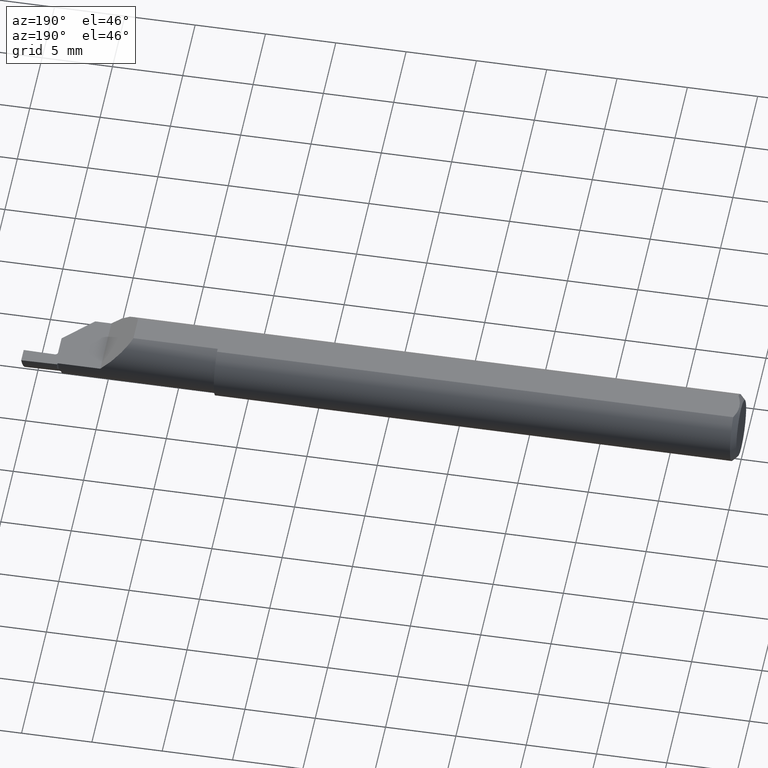
[diagram: clean part render]
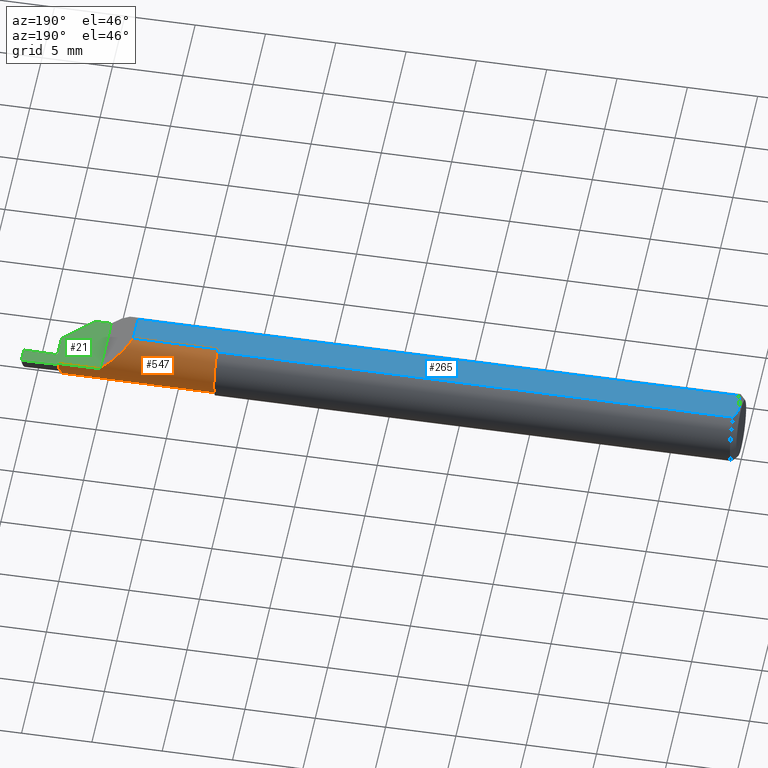
[diagram: same view with three faces highlighted in distinct colors, each labeled with its STEP entity id]
A machine part, auxiliary view with three faces highlighted in distinct colors.
Their STEP definitions:

[orange] entity #547 — the highlighted cylindrical surface (edge-blend (fillet) strip) has radius 2.3749 mm, axis along (-1, -0, -0).
#13 = DIRECTION ( 'NONE',  ( -1.000000000000000000, -0.000000000000000000, -0.000000000000000000 ) ) ;
#14 = CARTESIAN_POINT ( 'NONE',  ( 1.459999999999999964, 0.03097154424326390224, 0.08359999999999999376 ) ) ;
#16 = CARTESIAN_POINT ( 'NONE',  ( 1.892392784640333669, 0.07640332330515513248, -0.03349313484600640461 ) ) ;
#22 = B_SPLINE_CURVE_WITH_KNOTS ( 'NONE', 3,
 ( #767, #578, #67, #388, #271, #318, #209, #449, #16, #748, #757, #201, #461, #699 ),
 .UNSPECIFIED., .F., .F.,
 ( 4, 2, 2, 2, 2, 2, 4 ),
 ( 7.256861030427188251E-05, 9.698085888651912642E-05, 0.0001213931074687663839, 0.0001702176046332608988, 0.0002678665989622434776, 0.0004631645876202049490, 0.0008537605649361273497 ),
 .UNSPECIFIED. ) ;
#41 = AXIS2_PLACEMENT_3D ( 'NONE', #394, #13, #147 ) ;
#59 = ORIENTED_EDGE ( 'NONE', *, *, #68, .T. ) ;
#62 = CARTESIAN_POINT ( 'NONE',  ( 1.897000000000000020, 0.07811319095266830437, -0.02861409169956518131 ) ) ;
#66 = VERTEX_POINT ( 'NONE', #62 ) ;
#67 = CARTESIAN_POINT ( 'NONE',  ( 1.894627732444366996, 0.07811913687754187818, -0.02859649675619973727 ) ) ;
#68 = EDGE_CURVE ( 'NONE', #149, #170, #682, .T. ) ;
#78 = CARTESIAN_POINT ( 'NONE',  ( 1.897000000000000020, 0.08259923835978051632, 0.000000000000000000 ) ) ;
#94 = ORIENTED_EDGE ( 'NONE', *, *, #373, .T. ) ;
#98 = ORIENTED_EDGE ( 'NONE', *, *, #784, .T. ) ;
#101 = ORIENTED_EDGE ( 'NONE', *, *, #337, .F. ) ;
#118 = ORIENTED_EDGE ( 'NONE', *, *, #684, .T. ) ;
#123 = DIRECTION ( 'NONE',  ( -1.000000000000000000, -0.000000000000000000, -0.000000000000000000 ) ) ;
#125 = CARTESIAN_POINT ( 'NONE',  ( 1.459999999999999964, -0.01090076164021952856, 0.000000000000000000 ) ) ;
#135 = CARTESIAN_POINT ( 'NONE',  ( 1.897000000000000020, 0.07811319095266830437, -0.02861409169956518131 ) ) ;
#146 = CARTESIAN_POINT ( 'NONE',  ( 1.895835606825327035, 0.07814781751419529188, -0.02850620589952995720 ) ) ;
#147 = DIRECTION ( 'NONE',  ( 0.000000000000000000, 0.000000000000000000, 1.000000000000000000 ) ) ;
#149 = VERTEX_POINT ( 'NONE', #273 ) ;
#156 = CIRCLE ( 'NONE', #41, 0.09350000000000004141 ) ;
#169 =( BOUNDED_CURVE ( )  B_SPLINE_CURVE ( 3, ( #750, #262, #754, #650 ),
 .UNSPECIFIED., .F., .F. ) 
 B_SPLINE_CURVE_WITH_KNOTS ( ( 4, 4 ),
 ( 0.6209638303900812950, 1.521662293291193846 ),
 .UNSPECIFIED. ) 
 CURVE ( )  GEOMETRIC_REPRESENTATION_ITEM ( )  RATIONAL_B_SPLINE_CURVE ( ( 1.000000000000000000, 0.9335300958672718696, 0.9335300958672718696, 1.000000000000000000 ) ) 
 REPRESENTATION_ITEM ( '' )  );
#170 = VERTEX_POINT ( 'NONE', #78 ) ;
#174 = DIRECTION ( 'NONE',  ( 0.000000000000000000, 0.000000000000000000, 1.000000000000000000 ) ) ;
#198 = CARTESIAN_POINT ( 'NONE',  ( 1.459999999999999964, -0.006308577734120122439, -0.09338716103925936984 ) ) ;
#201 = CARTESIAN_POINT ( 'NONE',  ( 1.890598524915549916, 0.07068001362818430999, -0.04595452350073047504 ) ) ;
#208 = VERTEX_POINT ( 'NONE', #744 ) ;
#209 = CARTESIAN_POINT ( 'NONE',  ( 1.893292644685816706, 0.07743868350388317945, -0.03063904863663299491 ) ) ;
#218 = VERTEX_POINT ( 'NONE', #575 ) ;
#222 = VECTOR ( 'NONE', #336, 39.37007874015748143 ) ;
#224 = VERTEX_POINT ( 'NONE', #14 ) ;
#242 = CARTESIAN_POINT ( 'NONE',  ( 1.660946387129862867, 0.08259923835978048856, 0.000000000000000000 ) ) ;
#255 = CARTESIAN_POINT ( 'NONE',  ( 1.660946387129862867, 0.03097154424326391264, 0.08360000000000000764 ) ) ;
#261 = CARTESIAN_POINT ( 'NONE',  ( 1.895253422800819543, 0.07816509634661619743, -0.02845211663600469981 ) ) ;
#262 = CARTESIAN_POINT ( 'NONE',  ( 1.890775105635997821, 0.04823427239682376994, -0.07803867357391536252 ) ) ;
#264 = ORIENTED_EDGE ( 'NONE', *, *, #595, .F. ) ;
#267 = LINE ( 'NONE', #255, #735 ) ;
#270 = ORIENTED_EDGE ( 'NONE', *, *, #380, .T. ) ;
#271 = CARTESIAN_POINT ( 'NONE',  ( 1.893994891725665930, 0.07789552707581877400, -0.02928389011685635437 ) ) ;
#273 = CARTESIAN_POINT ( 'NONE',  ( 1.779599999999998516, 0.08259923835978043305, 0.000000000000000000 ) ) ;
#299 = CIRCLE ( 'NONE', #538, 0.09349999999999999978 ) ;
#309 = VECTOR ( 'NONE', #312, 39.37007874015748143 ) ;
#312 = DIRECTION ( 'NONE',  ( 1.000000000000000000, 0.000000000000000000, 0.000000000000000000 ) ) ;
#318 = CARTESIAN_POINT ( 'NONE',  ( 1.893524033098653581, 0.07763226771670377058, -0.03007426064524961959 ) ) ;
#322 = CARTESIAN_POINT ( 'NONE',  ( 1.896417799247865466, 0.07813051558452016598, -0.02856019748637314212 ) ) ;
#336 = DIRECTION ( 'NONE',  ( -1.000000000000000000, -0.000000000000000000, -0.000000000000000000 ) ) ;
#337 = EDGE_CURVE ( 'NONE', #149, #218, #387, .T. ) ;
#355 = EDGE_LOOP ( 'NONE', ( #118, #101, #59, #94, #692, #791, #270, #98, #264 ) ) ;
#373 = EDGE_CURVE ( 'NONE', #170, #66, #156, .T. ) ;
#380 = EDGE_CURVE ( 'NONE', #208, #712, #169, .T. ) ;
#382 = VERTEX_POINT ( 'NONE', #198 ) ;
#387 =( BOUNDED_CURVE ( )  B_SPLINE_CURVE ( 3, ( #573, #507, #646, #762 ),
 .UNSPECIFIED., .F., .F. ) 
 B_SPLINE_CURVE_WITH_KNOTS ( ( 4, 4 ),
 ( 4.712388980384689674, 5.818846015254569792 ),
 .UNSPECIFIED. ) 
 CURVE ( )  GEOMETRIC_REPRESENTATION_ITEM ( )  RATIONAL_B_SPLINE_CURVE ( ( 1.000000000000000000, 0.9005550513955334901, 0.9005550513955334901, 1.000000000000000000 ) ) 
 REPRESENTATION_ITEM ( '' )  );
#388 = CARTESIAN_POINT ( 'NONE',  ( 1.894170072029669694, 0.07797864803461972139, -0.02903019970120717524 ) ) ;
#394 = CARTESIAN_POINT ( 'NONE',  ( 1.897000000000000020, -0.01090076164021952856, 0.000000000000000000 ) ) ;
#398 = LINE ( 'NONE', #649, #222 ) ;
#422 = B_SPLINE_CURVE_WITH_KNOTS ( 'NONE', 3,
 ( #261, #146, #322, #135 ),
 .UNSPECIFIED., .F., .F.,
 ( 4, 4 ),
 ( 0.000000000000000000, 4.457292571049402440E-05 ),
 .UNSPECIFIED. ) ;
#436 = CARTESIAN_POINT ( 'NONE',  ( 1.660946387129862867, -0.01090076164021952856, 0.000000000000000000 ) ) ;
#444 = VERTEX_POINT ( 'NONE', #772 ) ;
#449 = CARTESIAN_POINT ( 'NONE',  ( 1.892683097730568420, 0.07683891314100430026, -0.03233318648368319753 ) ) ;
#461 = CARTESIAN_POINT ( 'NONE',  ( 1.890428976551350893, 0.06806399437556470700, -0.05031895006304105966 ) ) ;
#487 = CYLINDRICAL_SURFACE ( 'NONE', #503, 0.09350000000000002753 ) ;
#499 = CARTESIAN_POINT ( 'NONE',  ( 1.891727154626402729, -0.006308577734113422937, -0.09338716103925945311 ) ) ;
#503 = AXIS2_PLACEMENT_3D ( 'NONE', #436, #629, #174 ) ;
#507 = CARTESIAN_POINT ( 'NONE',  ( 1.743231059775836922, 0.08259923835978048856, 0.03636894022416206629 ) ) ;
#538 = AXIS2_PLACEMENT_3D ( 'NONE', #125, #123, #739 ) ;
#547 = ADVANCED_FACE ( 'NONE', ( #730 ), #487, .T. ) ;
#573 = CARTESIAN_POINT ( 'NONE',  ( 1.779599999999998516, 0.08259923835978043305, 0.000000000000000000 ) ) ;
#575 = CARTESIAN_POINT ( 'NONE',  ( 1.695999999999999286, 0.03097154424326392999, 0.08360000000000000764 ) ) ;
#578 = CARTESIAN_POINT ( 'NONE',  ( 1.894930893210933220, 0.07817466880910201033, -0.02842215121742965034 ) ) ;
#595 = EDGE_CURVE ( 'NONE', #224, #382, #299, .T. ) ;
#629 = DIRECTION ( 'NONE',  ( -1.000000000000000000, -0.000000000000000000, -0.000000000000000000 ) ) ;
#632 = DIRECTION ( 'NONE',  ( 1.000000000000000000, 0.000000000000000000, 0.000000000000000000 ) ) ;
#646 = CARTESIAN_POINT ( 'NONE',  ( 1.712287180638761397, 0.06348965550251473022, 0.06731281936123810483 ) ) ;
#649 = CARTESIAN_POINT ( 'NONE',  ( 1.678500000000000103, -0.006308577734120109429, -0.09338716103925938372 ) ) ;
#650 = CARTESIAN_POINT ( 'NONE',  ( 1.891727154626402729, -0.006308577734113422937, -0.09338716103925945311 ) ) ;
#682 = LINE ( 'NONE', #242, #309 ) ;
#684 = EDGE_CURVE ( 'NONE', #224, #218, #267, .T. ) ;
#692 = ORIENTED_EDGE ( 'NONE', *, *, #707, .F. ) ;
#699 = CARTESIAN_POINT ( 'NONE',  ( 1.890479936918255888, 0.06514447691086631964, -0.05440010747883181758 ) ) ;
#707 = EDGE_CURVE ( 'NONE', #444, #66, #422, .T. ) ;
#712 = VERTEX_POINT ( 'NONE', #499 ) ;
#719 = EDGE_CURVE ( 'NONE', #444, #208, #22, .T. ) ;
#730 = FACE_OUTER_BOUND ( 'NONE', #355, .T. ) ;
#735 = VECTOR ( 'NONE', #632, 39.37007874015748143 ) ;
#739 = DIRECTION ( 'NONE',  ( 0.000000000000000000, 0.000000000000000000, 1.000000000000000000 ) ) ;
#744 = CARTESIAN_POINT ( 'NONE',  ( 1.890479936918255888, 0.06514447691086631964, -0.05440010747883181758 ) ) ;
#748 = CARTESIAN_POINT ( 'NONE',  ( 1.891645442716298753, 0.07502228821001019621, -0.03695474021398025694 ) ) ;
#750 = CARTESIAN_POINT ( 'NONE',  ( 1.890479936918255888, 0.06514447691086631964, -0.05440010747883181758 ) ) ;
#754 = CARTESIAN_POINT ( 'NONE',  ( 1.891220446646308728, 0.02272070300350633593, -0.09195968648787943012 ) ) ;
#757 = CARTESIAN_POINT ( 'NONE',  ( 1.891328556254514126, 0.07400622478932961101, -0.03923393220600784187 ) ) ;
#762 = CARTESIAN_POINT ( 'NONE',  ( 1.695999999999999286, 0.03097154424326392999, 0.08360000000000000764 ) ) ;
#767 = CARTESIAN_POINT ( 'NONE',  ( 1.895253422800819543, 0.07816509634661619743, -0.02845211663600469981 ) ) ;
#772 = CARTESIAN_POINT ( 'NONE',  ( 1.895253422800819543, 0.07816509634661619743, -0.02845211663600469981 ) ) ;
#784 = EDGE_CURVE ( 'NONE', #712, #382, #398, .T. ) ;
#791 = ORIENTED_EDGE ( 'NONE', *, *, #719, .T. ) ;

[blue] entity #265 — the highlighted planar face has unit normal (0, 0, -1).
#3 = EDGE_CURVE ( 'NONE', #545, #340, #315, .T. ) ;
#14 = CARTESIAN_POINT ( 'NONE',  ( 1.459999999999999964, 0.03097154424326390224, 0.08359999999999999376 ) ) ;
#33 = FACE_OUTER_BOUND ( 'NONE', #630, .T. ) ;
#37 = B_SPLINE_CURVE_WITH_KNOTS ( 'NONE', 3,
 ( #458, #330, #520, #759, #702, #144 ),
 .UNSPECIFIED., .F., .F.,
 ( 4, 2, 4 ),
 ( 0.002614097267282435456, 0.003163218599391052176, 0.003712339931499668896 ),
 .UNSPECIFIED. ) ;
#70 = ORIENTED_EDGE ( 'NONE', *, *, #775, .F. ) ;
#80 = ORIENTED_EDGE ( 'NONE', *, *, #421, .F. ) ;
#88 = ORIENTED_EDGE ( 'NONE', *, *, #684, .F. ) ;
#93 = CARTESIAN_POINT ( 'NONE',  ( 0.000000000000000000, -0.1936000000000000221, 0.08360000000000000764 ) ) ;
#104 = AXIS2_PLACEMENT_3D ( 'NONE', #93, #350, #286 ) ;
#117 = VECTOR ( 'NONE', #210, 39.37007874015748143 ) ;
#144 = CARTESIAN_POINT ( 'NONE',  ( 0.01499999999999995781, -0.04209513035969836975, 0.08360000000000000764 ) ) ;
#152 = PLANE ( 'NONE',  #104 ) ;
#158 = VECTOR ( 'NONE', #565, 39.37007874015748143 ) ;
#159 = CARTESIAN_POINT ( 'NONE',  ( 1.695999999999999286, -0.04209513035969836975, 0.08360000000000000764 ) ) ;
#173 = EDGE_CURVE ( 'NONE', #340, #200, #37, .T. ) ;
#179 = CARTESIAN_POINT ( 'NONE',  ( 0.005981829149300420256, 0.01454044632356572483, 0.08359999999999997988 ) ) ;
#200 = VERTEX_POINT ( 'NONE', #751 ) ;
#205 = LINE ( 'NONE', #456, #521 ) ;
#210 = DIRECTION ( 'NONE',  ( -1.000000000000000000, -0.000000000000000000, -0.000000000000000000 ) ) ;
#218 = VERTEX_POINT ( 'NONE', #575 ) ;
#224 = VERTEX_POINT ( 'NONE', #14 ) ;
#246 = VECTOR ( 'NONE', #485, 39.37007874015748143 ) ;
#254 = VERTEX_POINT ( 'NONE', #159 ) ;
#255 = CARTESIAN_POINT ( 'NONE',  ( 1.660946387129862867, 0.03097154424326391264, 0.08360000000000000764 ) ) ;
#265 = ADVANCED_FACE ( 'NONE', ( #33 ), #152, .F. ) ;
#267 = LINE ( 'NONE', #255, #735 ) ;
#286 = DIRECTION ( 'NONE',  ( -1.000000000000000000, 0.000000000000000000, -0.000000000000000000 ) ) ;
#305 = LINE ( 'NONE', #800, #246 ) ;
#314 = LINE ( 'NONE', #375, #158 ) ;
#315 = B_SPLINE_CURVE_WITH_KNOTS ( 'NONE', 3,
 ( #431, #676, #369, #179, #482, #560 ),
 .UNSPECIFIED., .F., .F.,
 ( 4, 2, 4 ),
 ( 0.001518921481343233400, 0.002066509374312834428, 0.002614097267282435456 ),
 .UNSPECIFIED. ) ;
#317 = ORIENTED_EDGE ( 'NONE', *, *, #620, .T. ) ;
#330 = CARTESIAN_POINT ( 'NONE',  ( 0.004999999999999745967, -0.007328888879231070311, 0.08360000000000000764 ) ) ;
#340 = VERTEX_POINT ( 'NONE', #342 ) ;
#342 = CARTESIAN_POINT ( 'NONE',  ( 0.004999999999999758110, 1.025183015402604432E-17, 0.08360000000000000764 ) ) ;
#350 = DIRECTION ( 'NONE',  ( 0.000000000000000000, 0.000000000000000000, -1.000000000000000000 ) ) ;
#369 = CARTESIAN_POINT ( 'NONE',  ( 0.009492654797564083896, 0.02859466010166633598, 0.08360000000000000764 ) ) ;
#375 = CARTESIAN_POINT ( 'NONE',  ( 1.695999999999999286, 0.04209513035969836975, 0.08360000000000000764 ) ) ;
#421 = EDGE_CURVE ( 'NONE', #254, #200, #523, .T. ) ;
#431 = CARTESIAN_POINT ( 'NONE',  ( 0.01499999999999995955, 0.04209513035969836975, 0.08360000000000000764 ) ) ;
#439 = VERTEX_POINT ( 'NONE', #776 ) ;
#456 = CARTESIAN_POINT ( 'NONE',  ( 1.459999999999999964, -0.1936000000000000221, 0.08360000000000000764 ) ) ;
#458 = CARTESIAN_POINT ( 'NONE',  ( 0.004999999999999758110, 1.025183015402604432E-17, 0.08360000000000000764 ) ) ;
#482 = CARTESIAN_POINT ( 'NONE',  ( 0.004999999999999746834, 0.007308422719211847378, 0.08360000000000000764 ) ) ;
#485 = DIRECTION ( 'NONE',  ( 1.000000000000000000, 0.000000000000000000, 0.000000000000000000 ) ) ;
#514 = ORIENTED_EDGE ( 'NONE', *, *, #616, .F. ) ;
#520 = CARTESIAN_POINT ( 'NONE',  ( 0.005975039161239103364, -0.01453776427033151575, 0.08360000000000000764 ) ) ;
#521 = VECTOR ( 'NONE', #704, 39.37007874015748143 ) ;
#523 = LINE ( 'NONE', #768, #117 ) ;
#545 = VERTEX_POINT ( 'NONE', #690 ) ;
#560 = CARTESIAN_POINT ( 'NONE',  ( 0.004999999999999758110, 1.025183015402604432E-17, 0.08360000000000000764 ) ) ;
#565 = DIRECTION ( 'NONE',  ( -0.000000000000000000, 1.000000000000000000, 0.000000000000000000 ) ) ;
#575 = CARTESIAN_POINT ( 'NONE',  ( 1.695999999999999286, 0.03097154424326392999, 0.08360000000000000764 ) ) ;
#616 = EDGE_CURVE ( 'NONE', #545, #439, #305, .T. ) ;
#620 = EDGE_CURVE ( 'NONE', #254, #218, #314, .T. ) ;
#630 = EDGE_LOOP ( 'NONE', ( #70, #514, #782, #667, #80, #317, #88 ) ) ;
#632 = DIRECTION ( 'NONE',  ( 1.000000000000000000, 0.000000000000000000, 0.000000000000000000 ) ) ;
#667 = ORIENTED_EDGE ( 'NONE', *, *, #173, .T. ) ;
#676 = CARTESIAN_POINT ( 'NONE',  ( 0.01203648650249635951, 0.03550565407121128447, 0.08360000000000000764 ) ) ;
#684 = EDGE_CURVE ( 'NONE', #224, #218, #267, .T. ) ;
#690 = CARTESIAN_POINT ( 'NONE',  ( 0.01499999999999995955, 0.04209513035969836975, 0.08360000000000000764 ) ) ;
#702 = CARTESIAN_POINT ( 'NONE',  ( 0.01206089165507010647, -0.03555991978469318082, 0.08360000000000000764 ) ) ;
#704 = DIRECTION ( 'NONE',  ( 0.000000000000000000, -1.000000000000000000, 0.000000000000000000 ) ) ;
#735 = VECTOR ( 'NONE', #632, 39.37007874015748143 ) ;
#751 = CARTESIAN_POINT ( 'NONE',  ( 0.01499999999999995781, -0.04209513035969836975, 0.08360000000000000764 ) ) ;
#759 = CARTESIAN_POINT ( 'NONE',  ( 0.009539353699420573957, -0.02875682547511376752, 0.08359999999999997988 ) ) ;
#768 = CARTESIAN_POINT ( 'NONE',  ( 0.000000000000000000, -0.04209513035969836975, 0.08360000000000000764 ) ) ;
#775 = EDGE_CURVE ( 'NONE', #439, #224, #205, .T. ) ;
#776 = CARTESIAN_POINT ( 'NONE',  ( 1.459999999999999964, 0.04209513035969836975, 0.08360000000000000764 ) ) ;
#782 = ORIENTED_EDGE ( 'NONE', *, *, #3, .T. ) ;
#800 = CARTESIAN_POINT ( 'NONE',  ( 0.000000000000000000, 0.04209513035969836975, 0.08360000000000000764 ) ) ;

[green] entity #21 — the highlighted planar face has unit normal (0, 0, -1).
#2 = DIRECTION ( 'NONE',  ( -1.000000000000000000, 0.000000000000000000, 0.000000000000000000 ) ) ;
#8 = LINE ( 'NONE', #385, #618 ) ;
#10 = AXIS2_PLACEMENT_3D ( 'NONE', #557, #427, #738 ) ;
#21 = ADVANCED_FACE ( 'NONE', ( #171 ), #124, .F. ) ;
#24 = CARTESIAN_POINT ( 'NONE',  ( 1.899999999999999911, 0.08559923835978050510, 0.000000000000000000 ) ) ;
#26 = VECTOR ( 'NONE', #623, 39.37007874015748143 ) ;
#45 = LINE ( 'NONE', #295, #141 ) ;
#50 = EDGE_CURVE ( 'NONE', #567, #670, #669, .T. ) ;
#54 = ORIENTED_EDGE ( 'NONE', *, *, #107, .T. ) ;
#55 = EDGE_CURVE ( 'NONE', #448, #60, #300, .T. ) ;
#56 = CARTESIAN_POINT ( 'NONE',  ( 1.913000000000000034, 0.04211661038418336445, 0.000000000000000000 ) ) ;
#60 = VERTEX_POINT ( 'NONE', #617 ) ;
#63 = VECTOR ( 'NONE', #601, 39.37007874015748143 ) ;
#68 = EDGE_CURVE ( 'NONE', #149, #170, #682, .T. ) ;
#72 = CARTESIAN_POINT ( 'NONE',  ( 2.000000000000000000, 0.04859923835978044449, 0.000000000000000000 ) ) ;
#78 = CARTESIAN_POINT ( 'NONE',  ( 1.897000000000000020, 0.08259923835978051632, 0.000000000000000000 ) ) ;
#97 = LINE ( 'NONE', #279, #607 ) ;
#105 = AXIS2_PLACEMENT_3D ( 'NONE', #683, #379, #2 ) ;
#107 = EDGE_CURVE ( 'NONE', #331, #60, #8, .T. ) ;
#113 = DIRECTION ( 'NONE',  ( 0.000000000000000000, 0.000000000000000000, -1.000000000000000000 ) ) ;
#122 = EDGE_CURVE ( 'NONE', #149, #625, #634, .T. ) ;
#124 = PLANE ( 'NONE',  #10 ) ;
#134 = VERTEX_POINT ( 'NONE', #24 ) ;
#141 = VECTOR ( 'NONE', #349, 39.37007874015748854 ) ;
#149 = VERTEX_POINT ( 'NONE', #273 ) ;
#170 = VERTEX_POINT ( 'NONE', #78 ) ;
#171 = FACE_OUTER_BOUND ( 'NONE', #227, .T. ) ;
#176 = CARTESIAN_POINT ( 'NONE',  ( 1.752499999999999725, -0.1660999999999995536, 0.000000000000000000 ) ) ;
#181 = DIRECTION ( 'NONE',  ( 0.7071067811865496822, 0.7071067811865453523, 0.000000000000000000 ) ) ;
#221 = LINE ( 'NONE', #610, #691 ) ;
#227 = EDGE_LOOP ( 'NONE', ( #351, #602, #401, #703, #459, #365, #708, #54, #597, #392, #358 ) ) ;
#242 = CARTESIAN_POINT ( 'NONE',  ( 1.660946387129862867, 0.08259923835978048856, 0.000000000000000000 ) ) ;
#248 = EDGE_CURVE ( 'NONE', #766, #625, #346, .T. ) ;
#258 = EDGE_CURVE ( 'NONE', #335, #567, #97, .T. ) ;
#272 = CARTESIAN_POINT ( 'NONE',  ( 1.905000000000000027, -0.01360000000000000965, 0.000000000000000000 ) ) ;
#273 = CARTESIAN_POINT ( 'NONE',  ( 1.779599999999998516, 0.08259923835978043305, 0.000000000000000000 ) ) ;
#279 = CARTESIAN_POINT ( 'NONE',  ( 1.905000000000000027, -0.1936000000000000221, 0.000000000000000000 ) ) ;
#295 = CARTESIAN_POINT ( 'NONE',  ( 1.784293324788139845, 0.05236441238105157825, 0.000000000000000000 ) ) ;
#300 = LINE ( 'NONE', #793, #26 ) ;
#309 = VECTOR ( 'NONE', #312, 39.37007874015748143 ) ;
#312 = DIRECTION ( 'NONE',  ( 1.000000000000000000, 0.000000000000000000, 0.000000000000000000 ) ) ;
#331 = VERTEX_POINT ( 'NONE', #72 ) ;
#332 = CARTESIAN_POINT ( 'NONE',  ( 1.913139705841341520, 0.05011539043400316945, -1.067128122525102820E-17 ) ) ;
#335 = VERTEX_POINT ( 'NONE', #272 ) ;
#339 = DIRECTION ( 'NONE',  ( 0.000000000000000000, -1.000000000000000000, 0.000000000000000000 ) ) ;
#346 = LINE ( 'NONE', #769, #63 ) ;
#349 = DIRECTION ( 'NONE',  ( 0.9998476951563912696, -0.01745240643727517110, 0.000000000000000000 ) ) ;
#351 = ORIENTED_EDGE ( 'NONE', *, *, #68, .F. ) ;
#358 = ORIENTED_EDGE ( 'NONE', *, *, #613, .F. ) ;
#363 = VECTOR ( 'NONE', #339, 39.37007874015748143 ) ;
#365 = ORIENTED_EDGE ( 'NONE', *, *, #50, .T. ) ;
#372 = DIRECTION ( 'NONE',  ( -1.000000000000000000, 0.000000000000000000, 0.000000000000000000 ) ) ;
#379 = DIRECTION ( 'NONE',  ( -0.000000000000000000, -0.000000000000000000, 1.000000000000000000 ) ) ;
#385 = CARTESIAN_POINT ( 'NONE',  ( 2.000000000000000000, -0.1936000000000000221, 0.000000000000000000 ) ) ;
#392 = ORIENTED_EDGE ( 'NONE', *, *, #477, .F. ) ;
#401 = ORIENTED_EDGE ( 'NONE', *, *, #248, .F. ) ;
#425 = CARTESIAN_POINT ( 'NONE',  ( 1.905000000000000027, 0.04211661038418336445, 0.000000000000000000 ) ) ;
#427 = DIRECTION ( 'NONE',  ( 0.000000000000000000, 0.000000000000000000, -1.000000000000000000 ) ) ;
#448 = VERTEX_POINT ( 'NONE', #660 ) ;
#459 = ORIENTED_EDGE ( 'NONE', *, *, #258, .T. ) ;
#469 = CIRCLE ( 'NONE', #105, 0.002999999999999940648 ) ;
#477 = EDGE_CURVE ( 'NONE', #134, #448, #221, .T. ) ;
#491 = CARTESIAN_POINT ( 'NONE',  ( 1.779599999999998516, -0.09360000000000001652, 0.000000000000000000 ) ) ;
#497 = CARTESIAN_POINT ( 'NONE',  ( 1.779599999999998516, -0.1936000000000000221, 0.000000000000000000 ) ) ;
#511 = EDGE_CURVE ( 'NONE', #766, #335, #727, .T. ) ;
#557 = CARTESIAN_POINT ( 'NONE',  ( 1.779999999999999805, -0.1936000000000000221, 0.000000000000000000 ) ) ;
#567 = VERTEX_POINT ( 'NONE', #425 ) ;
#580 = DIRECTION ( 'NONE',  ( 0.000000000000000000, 1.000000000000000000, 0.000000000000000000 ) ) ;
#597 = ORIENTED_EDGE ( 'NONE', *, *, #55, .F. ) ;
#601 = DIRECTION ( 'NONE',  ( -1.000000000000000000, -0.000000000000000000, -0.000000000000000000 ) ) ;
#602 = ORIENTED_EDGE ( 'NONE', *, *, #122, .T. ) ;
#607 = VECTOR ( 'NONE', #711, 39.37007874015748143 ) ;
#610 = CARTESIAN_POINT ( 'NONE',  ( 1.899999999999999911, -0.1936000000000000221, 0.000000000000000000 ) ) ;
#613 = EDGE_CURVE ( 'NONE', #170, #134, #469, .T. ) ;
#617 = CARTESIAN_POINT ( 'NONE',  ( 2.000000000000000000, 0.08859923835978048001, 2.614463900186501978E-16 ) ) ;
#618 = VECTOR ( 'NONE', #580, 39.37007874015748143 ) ;
#623 = DIRECTION ( 'NONE',  ( 0.9998476951563914916, 0.01745240643726934937, 0.000000000000000000 ) ) ;
#625 = VERTEX_POINT ( 'NONE', #491 ) ;
#634 = LINE ( 'NONE', #497, #363 ) ;
#660 = CARTESIAN_POINT ( 'NONE',  ( 1.899999999999999911, 0.08685373186696009051, 0.000000000000000000 ) ) ;
#668 = DIRECTION ( 'NONE',  ( 0.000000000000000000, 1.000000000000000000, 0.000000000000000000 ) ) ;
#669 = CIRCLE ( 'NONE', #798, 0.008000000000000024453 ) ;
#670 = VERTEX_POINT ( 'NONE', #332 ) ;
#682 = LINE ( 'NONE', #242, #309 ) ;
#683 = CARTESIAN_POINT ( 'NONE',  ( 1.897000000000000020, 0.08559923835978049123, 0.000000000000000000 ) ) ;
#691 = VECTOR ( 'NONE', #668, 39.37007874015748143 ) ;
#703 = ORIENTED_EDGE ( 'NONE', *, *, #511, .T. ) ;
#708 = ORIENTED_EDGE ( 'NONE', *, *, #794, .T. ) ;
#711 = DIRECTION ( 'NONE',  ( 0.000000000000000000, 1.000000000000000000, 0.000000000000000000 ) ) ;
#716 = VECTOR ( 'NONE', #181, 39.37007874015748143 ) ;
#727 = LINE ( 'NONE', #176, #716 ) ;
#738 = DIRECTION ( 'NONE',  ( -1.000000000000000000, 0.000000000000000000, -0.000000000000000000 ) ) ;
#761 = CARTESIAN_POINT ( 'NONE',  ( 1.824999999999999512, -0.09360000000000003040, 0.000000000000000000 ) ) ;
#766 = VERTEX_POINT ( 'NONE', #761 ) ;
#769 = CARTESIAN_POINT ( 'NONE',  ( 0.000000000000000000, -0.09360000000000001652, 0.000000000000000000 ) ) ;
#793 = CARTESIAN_POINT ( 'NONE',  ( 2.110070508499388708, 0.09052052623231762740, 0.000000000000000000 ) ) ;
#794 = EDGE_CURVE ( 'NONE', #670, #331, #45, .T. ) ;
#798 = AXIS2_PLACEMENT_3D ( 'NONE', #56, #113, #372 ) ;